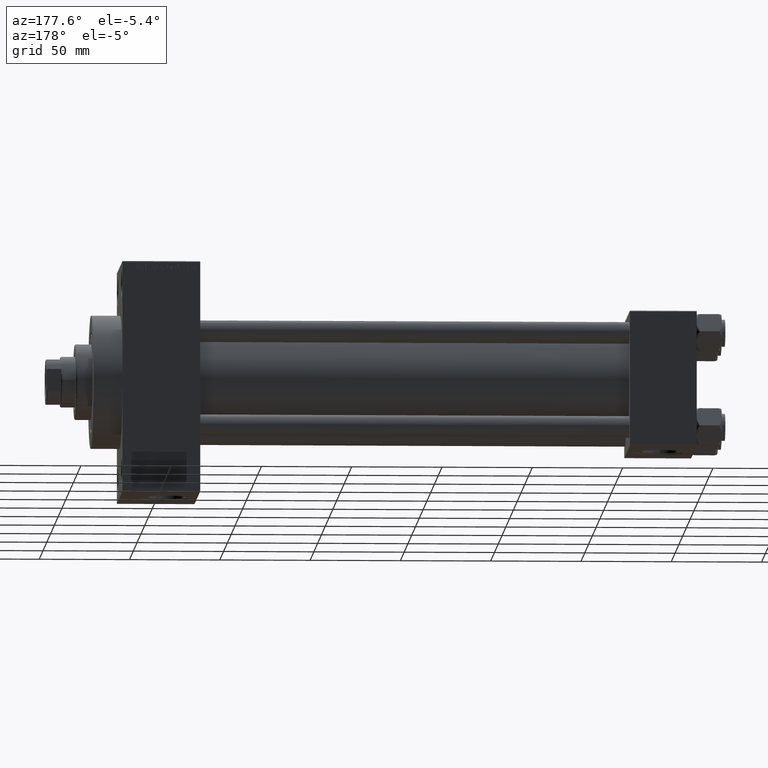
[diagram: clean part render]
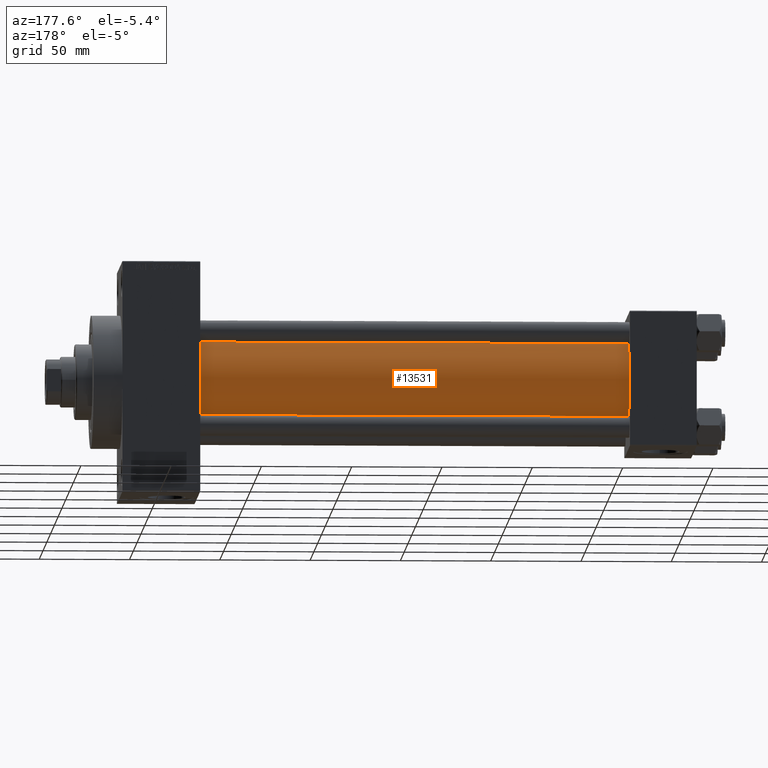
[diagram: same view with one face highlighted and labeled with its STEP entity id]
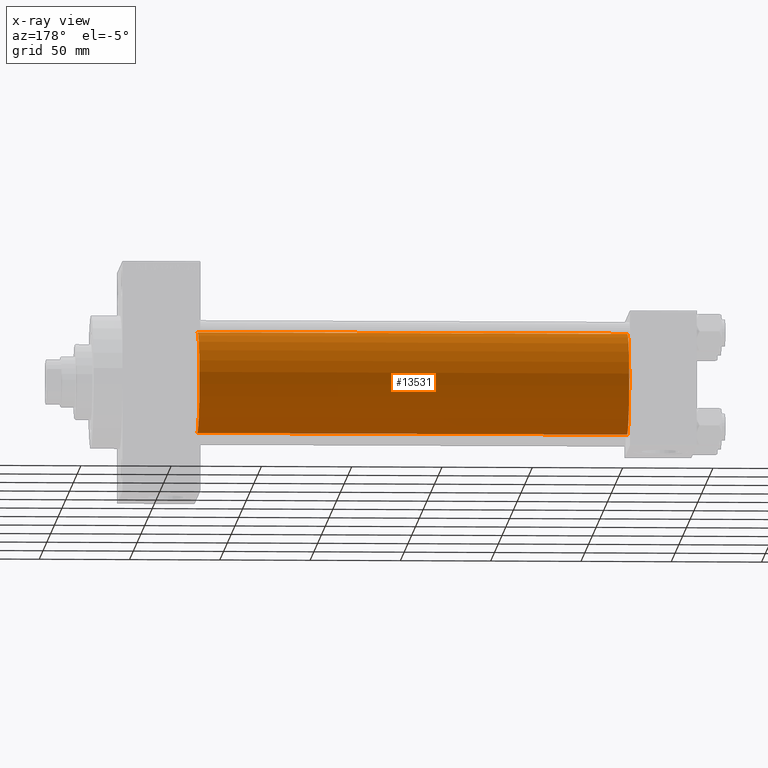
[diagram: x-ray of the same camera — body ghosted, the highlighted face saturated]
A machine part, auxiliary view. The second image highlights one B-rep face of the part: STEP entity #13531.
The next image is the same camera in x-ray: the body ghosted, the highlighted face saturated — about 0% of this face is hidden behind the body in this view.
In plain terms, the highlighted cylindrical surface (partial cylindrical patch) has radius 28 mm, axis along (-1, -0, -0).
Its self-contained STEP definition (entity closure, byte-faithful):
#167 = AXIS2_PLACEMENT_3D ( 'NONE', #35283, #16083, #43499 ) ;
#2982 = ORIENTED_EDGE ( 'NONE', *, *, #20017, .T. ) ;
#3281 = CARTESIAN_POINT ( 'NONE',  ( 274.9999999999999432, 8.269258236473784371E-16, -28.00000000000000000 ) ) ;
#4028 = CARTESIAN_POINT ( 'NONE',  ( 274.9999999999999432, -2.602085213965210642E-15, 28.00000000000000000 ) ) ;
#4494 = LINE ( 'NONE', #40104, #48496 ) ;
#4838 = ORIENTED_EDGE ( 'NONE', *, *, #21063, .F. ) ;
#5062 = DIRECTION ( 'NONE',  ( -1.000000000000000000, -0.000000000000000000, -0.000000000000000000 ) ) ;
#7705 = CARTESIAN_POINT ( 'NONE',  ( 274.9999999999999432, -2.602085213965210642E-15, 28.00000000000000000 ) ) ;
#8637 = CARTESIAN_POINT ( 'NONE',  ( 274.9999999999999432, -2.602085213965210642E-15, 0.000000000000000000 ) ) ;
#9122 = VERTEX_POINT ( 'NONE', #3281 ) ;
#9217 = AXIS2_PLACEMENT_3D ( 'NONE', #8637, #5062, #43755 ) ;
#12488 = EDGE_CURVE ( 'NONE', #9122, #24594, #4494, .T. ) ;
#12697 = VERTEX_POINT ( 'NONE', #7705 ) ;
#13531 = ADVANCED_FACE ( 'NONE', ( #24526 ), #28363, .T. ) ;
#14546 = DIRECTION ( 'NONE',  ( 1.000000000000000000, -0.000000000000000000, 0.000000000000000000 ) ) ;
#15508 = ORIENTED_EDGE ( 'NONE', *, *, #45192, .F. ) ;
#15615 = EDGE_LOOP ( 'NONE', ( #15508, #48414, #2982, #4838 ) ) ;
#16083 = DIRECTION ( 'NONE',  ( 1.000000000000000000, 0.000000000000000000, 0.000000000000000000 ) ) ;
#16282 = DIRECTION ( 'NONE',  ( -1.000000000000000000, -0.000000000000000000, -0.000000000000000000 ) ) ;
#19650 = CARTESIAN_POINT ( 'NONE',  ( 37.00000000000000711, -2.602085213965210642E-15, 0.000000000000000000 ) ) ;
#19929 = VECTOR ( 'NONE', #34770, 1000.000000000000000 ) ;
#20017 = EDGE_CURVE ( 'NONE', #24594, #29416, #50198, .T. ) ;
#21063 = EDGE_CURVE ( 'NONE', #12697, #29416, #31438, .T. ) ;
#22220 = CIRCLE ( 'NONE', #167, 28.00000000000000000 ) ;
#23137 = CARTESIAN_POINT ( 'NONE',  ( 37.00000000000000711, -2.602085213965210642E-15, 28.00000000000000000 ) ) ;
#24526 = FACE_OUTER_BOUND ( 'NONE', #15615, .T. ) ;
#24594 = VERTEX_POINT ( 'NONE', #35510 ) ;
#28363 = CYLINDRICAL_SURFACE ( 'NONE', #9217, 28.00000000000000000 ) ;
#29416 = VERTEX_POINT ( 'NONE', #23137 ) ;
#31438 = LINE ( 'NONE', #4028, #19929 ) ;
#34761 = DIRECTION ( 'NONE',  ( 0.000000000000000000, 0.000000000000000000, 1.000000000000000000 ) ) ;
#34770 = DIRECTION ( 'NONE',  ( -1.000000000000000000, -0.000000000000000000, -0.000000000000000000 ) ) ;
#35283 = CARTESIAN_POINT ( 'NONE',  ( 274.9999999999999432, -2.602085213965210642E-15, 0.000000000000000000 ) ) ;
#35510 = CARTESIAN_POINT ( 'NONE',  ( 37.00000000000000711, 8.269258236473784371E-16, -28.00000000000000000 ) ) ;
#40104 = CARTESIAN_POINT ( 'NONE',  ( 274.9999999999999432, 8.269258236473784371E-16, -28.00000000000000000 ) ) ;
#43499 = DIRECTION ( 'NONE',  ( 0.000000000000000000, 0.000000000000000000, -1.000000000000000000 ) ) ;
#43640 = AXIS2_PLACEMENT_3D ( 'NONE', #19650, #14546, #34761 ) ;
#43755 = DIRECTION ( 'NONE',  ( 0.000000000000000000, 0.000000000000000000, 1.000000000000000000 ) ) ;
#45192 = EDGE_CURVE ( 'NONE', #9122, #12697, #22220, .T. ) ;
#48414 = ORIENTED_EDGE ( 'NONE', *, *, #12488, .T. ) ;
#48496 = VECTOR ( 'NONE', #16282, 1000.000000000000000 ) ;
#50198 = CIRCLE ( 'NONE', #43640, 28.00000000000000000 ) ;